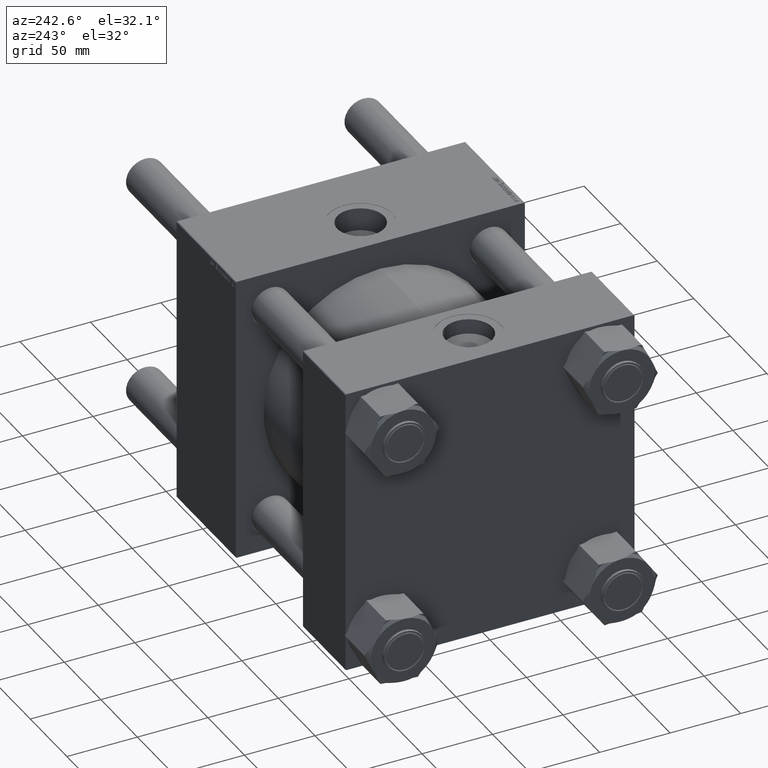
[diagram: clean part render]
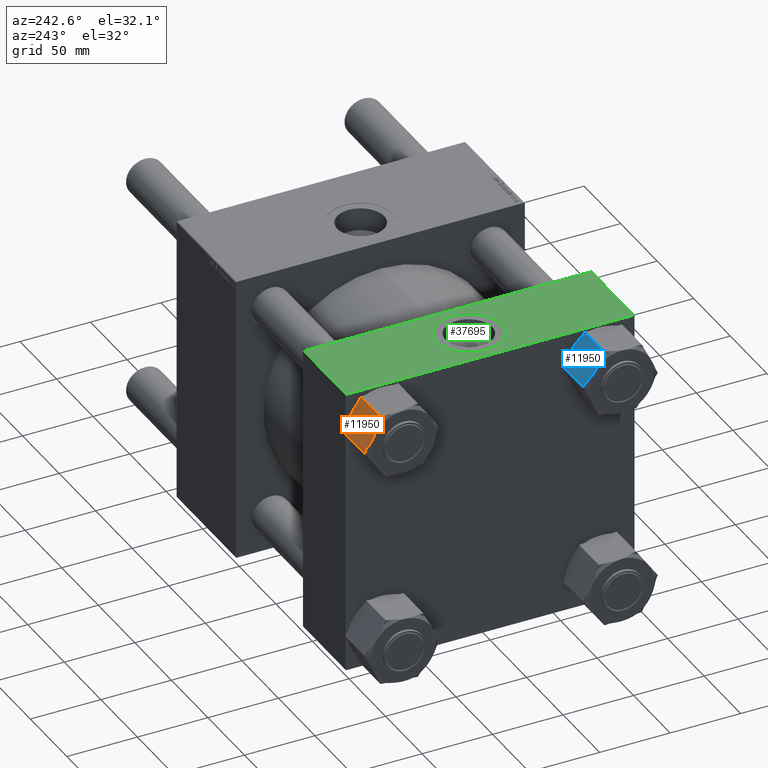
[diagram: same view with three faces highlighted in distinct colors, each labeled with its STEP entity id]
A machine part, auxiliary view with three faces highlighted in distinct colors.
Their STEP definitions:

[orange] entity #11950 — the highlighted planar face has unit normal (-0, -0.9058, -0.4237).
#653 = CARTESIAN_POINT ( 'NONE',  ( 24.47560625466583417, -3.714198918351720557, -1.691610128380188316 ) ) ;
#655 = CARTESIAN_POINT ( 'NONE',  ( 26.62000000000001165, -3.114209406997181913E-15, -2.000000000000001776 ) ) ;
#773 = VERTEX_POINT ( 'NONE', #15933 ) ;
#934 = CARTESIAN_POINT ( 'NONE',  ( 20.81146273741196140, -10.06068165645955936, 1.716653439768715775E-14 ) ) ;
#1368 = B_SPLINE_CURVE_WITH_KNOTS ( 'NONE', 3,
 ( #10497, #45799, #54762, #18904, #50425, #51008, #37713, #28451 ),
 .UNSPECIFIED., .F., .F.,
 ( 4, 2, 2, 4 ),
 ( 0.01001235240522100126, 0.01501505178013391902, 0.01751640146759038050, 0.02001775115504684371 ),
 .UNSPECIFIED. ) ;
#1503 = CARTESIAN_POINT ( 'NONE',  ( 24.86944657925254631, -3.032047466098111155, -2.000000000000000000 ) ) ;
#2219 = CARTESIAN_POINT ( 'NONE',  ( 21.02060996173663554, -9.698428037667220281, -30.90723860914735965 ) ) ;
#2905 = CARTESIAN_POINT ( 'NONE',  ( 24.86944657925254631, -3.032047466098111155, -2.000000000000000000 ) ) ;
#3565 = VECTOR ( 'NONE', #36167, 1000.000000000000000 ) ;
#4708 = CARTESIAN_POINT ( 'NONE',  ( 21.64175213325207991, -8.622578237878791185, -0.1878618656617445370 ) ) ;
#4942 = CARTESIAN_POINT ( 'NONE',  ( 16.64769565855988276, -17.27253778791399341, -0.8826024950750001041 ) ) ;
#5210 = EDGE_CURVE ( 'NONE', #21845, #29026, #48595, .T. ) ;
#5226 = B_SPLINE_CURVE_WITH_KNOTS ( 'NONE', 3,
 ( #44940, #934, #4708, #13958, #49557, #18026, #653, #1503 ),
 .UNSPECIFIED., .F., .F.,
 ( 4, 2, 2, 4 ),
 ( 0.01001235240522100993, 0.01501505178013392942, 0.01751640146759038744, 0.02001775115504684718 ),
 .UNSPECIFIED. ) ;
#5933 = DIRECTION ( 'NONE',  ( 0.5000000000000001110, 0.8660254037844385966, -0.000000000000000000 ) ) ;
#6224 = EDGE_CURVE ( 'NONE', #13896, #21845, #9231, .T. ) ;
#6901 = VECTOR ( 'NONE', #54458, 1000.000000000000000 ) ;
#7150 = CARTESIAN_POINT ( 'NONE',  ( 24.86944657925254987, -3.032047466098102273, -28.99999999999999645 ) ) ;
#7433 = CARTESIAN_POINT ( 'NONE',  ( 21.64584558940375558, -8.615488163845542502, -30.77092979404565298 ) ) ;
#8516 = EDGE_LOOP ( 'NONE', ( #50934, #17496, #15681, #34451, #52970, #34331, #39936, #44460, #13911, #48459 ) ) ;
#9231 = LINE ( 'NONE', #57008, #3565 ) ;
#10296 = CARTESIAN_POINT ( 'NONE',  ( 13.31000000000000938, -23.05359624874175850, -31.00000000000000000 ) ) ;
#10416 = CARTESIAN_POINT ( 'NONE',  ( 19.11895617587299867, -12.99218901318872810, -0.05818196640765635475 ) ) ;
#10497 = CARTESIAN_POINT ( 'NONE',  ( 19.96500000000001052, -11.52679812437088636, -31.00000000000000000 ) ) ;
#10946 = EDGE_CURVE ( 'NONE', #773, #16998, #41806, .T. ) ;
#11498 = CARTESIAN_POINT ( 'NONE',  ( 23.28230434144013827, -5.781058460827764200, -30.11739750492498757 ) ) ;
#11785 = CARTESIAN_POINT ( 'NONE',  ( 22.05804950302957579, -7.901530042366893269, -30.63660360727164900 ) ) ;
#11950 = ADVANCED_FACE ( 'NONE', ( #43688 ), #17334, .F. ) ;
#12036 = CARTESIAN_POINT ( 'NONE',  ( 26.62000000000001165, -3.114209406997181913E-15, -28.99999999999999645 ) ) ;
#12061 = CARTESIAN_POINT ( 'NONE',  ( 20.17675130770548009, -11.16003410085586367, -31.00000000000001776 ) ) ;
#13449 = CARTESIAN_POINT ( 'NONE',  ( 15.06055342074746584, -20.02154878264366644, -28.99999999999999645 ) ) ;
#13896 = VERTEX_POINT ( 'NONE', #13449 ) ;
#13911 = ORIENTED_EDGE ( 'NONE', *, *, #24512, .F. ) ;
#13958 = CARTESIAN_POINT ( 'NONE',  ( 22.86684697778495590, -6.500651723057162101, -0.7059057375046283722 ) ) ;
#14409 = VECTOR ( 'NONE', #5933, 1000.000000000000000 ) ;
#14494 = CARTESIAN_POINT ( 'NONE',  ( 26.62000000000001165, -3.114209406997181913E-15, -31.00000000000000000 ) ) ;
#15681 = ORIENTED_EDGE ( 'NONE', *, *, #30122, .F. ) ;
#15933 = CARTESIAN_POINT ( 'NONE',  ( 15.06055342074746939, -20.02154878264365934, -2.000000000000000000 ) ) ;
#16998 = VERTEX_POINT ( 'NONE', #19227 ) ;
#17037 = VERTEX_POINT ( 'NONE', #32548 ) ;
#17334 = PLANE ( 'NONE',  #54568 ) ;
#17347 = DIRECTION ( 'NONE',  ( -0.000000000000000000, -0.000000000000000000, 1.000000000000000000 ) ) ;
#17496 = ORIENTED_EDGE ( 'NONE', *, *, #24776, .T. ) ;
#17836 = VECTOR ( 'NONE', #32724, 1000.000000000000000 ) ;
#17951 = CARTESIAN_POINT ( 'NONE',  ( 19.96500000000001052, -11.52679812437088636, -31.00000000000000000 ) ) ;
#18026 = CARTESIAN_POINT ( 'NONE',  ( 24.07590164194817461, -4.406507615598338923, -1.410264737635125165 ) ) ;
#18257 = CARTESIAN_POINT ( 'NONE',  ( 19.96500000000001407, -11.52679812437088813, 0.000000000000000000 ) ) ;
#18830 = CARTESIAN_POINT ( 'NONE',  ( 18.28415441059626900, -14.43810808489622666, -0.2290702059543296421 ) ) ;
#18904 = CARTESIAN_POINT ( 'NONE',  ( 17.06315302221505448, -16.55294452568461239, -30.29409426249535997 ) ) ;
#19227 = CARTESIAN_POINT ( 'NONE',  ( 19.96500000000001407, -11.52679812437088813, 0.000000000000000000 ) ) ;
#19486 = VERTEX_POINT ( 'NONE', #2905 ) ;
#21845 = VERTEX_POINT ( 'NONE', #27548 ) ;
#22620 = CARTESIAN_POINT ( 'NONE',  ( 13.31000000000000938, -23.05359624874175850, -2.000000000000001776 ) ) ;
#23864 = B_SPLINE_CURVE_WITH_KNOTS ( 'NONE', 3,
 ( #7150, #55477, #11498, #11785, #7433, #2219, #50844, #46206, #12061, #55769 ),
 .UNSPECIFIED., .F., .F.,
 ( 4, 2, 2, 2, 4 ),
 ( 5.412492187524912870E-07, 0.005006446827219876265, 0.007509399616220438327, 0.008760876010720720225, 0.01001235240522100126 ),
 .UNSPECIFIED. ) ;
#24035 = LINE ( 'NONE', #14494, #17836 ) ;
#24512 = EDGE_CURVE ( 'NONE', #50545, #13896, #1368, .T. ) ;
#24776 = EDGE_CURVE ( 'NONE', #53512, #56596, #24035, .T. ) ;
#27526 = CARTESIAN_POINT ( 'NONE',  ( 19.75324869229454094, -11.89356214788591082, 1.751268852879841305E-14 ) ) ;
#27548 = CARTESIAN_POINT ( 'NONE',  ( 13.31000000000000938, -23.05359624874175850, -28.99999999999999645 ) ) ;
#27932 = LINE ( 'NONE', #45579, #14409 ) ;
#28451 = CARTESIAN_POINT ( 'NONE',  ( 15.06055342074746584, -20.02154878264366644, -28.99999999999999645 ) ) ;
#29026 = VERTEX_POINT ( 'NONE', #22620 ) ;
#30122 = EDGE_CURVE ( 'NONE', #19486, #56596, #44653, .T. ) ;
#31865 = CARTESIAN_POINT ( 'NONE',  ( 15.84797143746256154, -18.65770077089801049, -1.383425906575934228 ) ) ;
#32548 = CARTESIAN_POINT ( 'NONE',  ( 24.86944657925254987, -3.032047466098102273, -28.99999999999999645 ) ) ;
#32724 = DIRECTION ( 'NONE',  ( -0.000000000000000000, -0.000000000000000000, 1.000000000000000000 ) ) ;
#34331 = ORIENTED_EDGE ( 'NONE', *, *, #38985, .F. ) ;
#34451 = ORIENTED_EDGE ( 'NONE', *, *, #49481, .F. ) ;
#36167 = DIRECTION ( 'NONE',  ( -0.5000000000000001110, -0.8660254037844385966, 0.000000000000000000 ) ) ;
#36212 = CARTESIAN_POINT ( 'NONE',  ( 15.06055342074746939, -20.02154878264365934, -2.000000000000000000 ) ) ;
#37713 = CARTESIAN_POINT ( 'NONE',  ( 15.45439374533418153, -19.33939733039005304, -29.30838987161980924 ) ) ;
#38660 = VECTOR ( 'NONE', #57189, 1000.000000000000000 ) ;
#38782 = CARTESIAN_POINT ( 'NONE',  ( 26.62000000000001165, -3.114209406997181913E-15, -31.00000000000000000 ) ) ;
#38985 = EDGE_CURVE ( 'NONE', #29026, #773, #27932, .T. ) ;
#39556 = LINE ( 'NONE', #48218, #38660 ) ;
#39936 = ORIENTED_EDGE ( 'NONE', *, *, #5210, .F. ) ;
#39985 = EDGE_CURVE ( 'NONE', #17037, #50545, #23864, .T. ) ;
#40549 = CARTESIAN_POINT ( 'NONE',  ( 17.87195049697045235, -15.15206620637487056, -0.3633963927283481166 ) ) ;
#40709 = EDGE_CURVE ( 'NONE', #53512, #17037, #39556, .T. ) ;
#41806 = B_SPLINE_CURVE_WITH_KNOTS ( 'NONE', 3,
 ( #36212, #31865, #4942, #40549, #18830, #53839, #10416, #49501, #27526, #18257 ),
 .UNSPECIFIED., .F., .F.,
 ( 4, 2, 2, 2, 4 ),
 ( 5.412492187692172230E-07, 0.005006446827219892745, 0.007509399616220453939, 0.008760876010720730633, 0.01001235240522100993 ),
 .UNSPECIFIED. ) ;
#42705 = CARTESIAN_POINT ( 'NONE',  ( 26.62000000000001165, -3.114209406997181913E-15, -2.000000000000001776 ) ) ;
#43688 = FACE_OUTER_BOUND ( 'NONE', #8516, .T. ) ;
#44460 = ORIENTED_EDGE ( 'NONE', *, *, #6224, .F. ) ;
#44653 = LINE ( 'NONE', #655, #6901 ) ;
#44940 = CARTESIAN_POINT ( 'NONE',  ( 19.96500000000001407, -11.52679812437088813, 0.000000000000000000 ) ) ;
#45579 = CARTESIAN_POINT ( 'NONE',  ( 26.62000000000001165, -3.114209406997181913E-15, -2.000000000000001776 ) ) ;
#45799 = CARTESIAN_POINT ( 'NONE',  ( 19.11853726258805253, -12.99291459228221335, -31.00000000000001421 ) ) ;
#46206 = CARTESIAN_POINT ( 'NONE',  ( 20.38949137558736879, -10.79155749447877533, -30.98821302260233423 ) ) ;
#48218 = CARTESIAN_POINT ( 'NONE',  ( 26.62000000000001165, -3.114209406997181913E-15, -28.99999999999999645 ) ) ;
#48459 = ORIENTED_EDGE ( 'NONE', *, *, #39985, .F. ) ;
#48595 = LINE ( 'NONE', #10296, #56184 ) ;
#49481 = EDGE_CURVE ( 'NONE', #16998, #19486, #5226, .T. ) ;
#49501 = CARTESIAN_POINT ( 'NONE',  ( 19.54050862441265934, -12.26203875426299561, -0.01178697739765613428 ) ) ;
#49557 = CARTESIAN_POINT ( 'NONE',  ( 23.27184413332394541, -5.799176072742754151, -0.9177057102691517088 ) ) ;
#50425 = CARTESIAN_POINT ( 'NONE',  ( 16.65815586667606851, -17.25442017599902300, -30.08229428973084651 ) ) ;
#50545 = VERTEX_POINT ( 'NONE', #17951 ) ;
#50844 = CARTESIAN_POINT ( 'NONE',  ( 20.81104382412701881, -10.06140723555304106, -30.94181803359233740 ) ) ;
#50934 = ORIENTED_EDGE ( 'NONE', *, *, #40709, .F. ) ;
#51008 = CARTESIAN_POINT ( 'NONE',  ( 15.85409835805183221, -18.64708863314342935, -29.58973526236486151 ) ) ;
#52640 = DIRECTION ( 'NONE',  ( -0.8660254037844385966, 0.5000000000000001110, 0.000000000000000000 ) ) ;
#52970 = ORIENTED_EDGE ( 'NONE', *, *, #10946, .F. ) ;
#53512 = VERTEX_POINT ( 'NONE', #12036 ) ;
#53839 = CARTESIAN_POINT ( 'NONE',  ( 18.90939003826338904, -13.35516821107455065, -0.09276139085263494788 ) ) ;
#54458 = DIRECTION ( 'NONE',  ( 0.5000000000000001110, 0.8660254037844385966, -0.000000000000000000 ) ) ;
#54568 = AXIS2_PLACEMENT_3D ( 'NONE', #38782, #52640, #56414 ) ;
#54762 = CARTESIAN_POINT ( 'NONE',  ( 18.28824786674792335, -14.43101801086298508, -30.81213813433824100 ) ) ;
#55477 = CARTESIAN_POINT ( 'NONE',  ( 24.08202856253745594, -4.395895477843759558, -29.61657409342405600 ) ) ;
#55769 = CARTESIAN_POINT ( 'NONE',  ( 19.96500000000001052, -11.52679812437088636, -31.00000000000000000 ) ) ;
#56184 = VECTOR ( 'NONE', #17347, 1000.000000000000000 ) ;
#56414 = DIRECTION ( 'NONE',  ( -0.5000000000000001110, -0.8660254037844385966, 0.000000000000000000 ) ) ;
#56596 = VERTEX_POINT ( 'NONE', #42705 ) ;
#57008 = CARTESIAN_POINT ( 'NONE',  ( 26.62000000000001165, -3.114209406997181913E-15, -28.99999999999999645 ) ) ;
#57189 = DIRECTION ( 'NONE',  ( -0.5000000000000001110, -0.8660254037844385966, 0.000000000000000000 ) ) ;

[blue] entity #11950 — the highlighted planar face has unit normal (0, -0.8198, -0.5726).
#653 = CARTESIAN_POINT ( 'NONE',  ( 24.47560625466583417, -3.714198918351720557, -1.691610128380188316 ) ) ;
#655 = CARTESIAN_POINT ( 'NONE',  ( 26.62000000000001165, -3.114209406997181913E-15, -2.000000000000001776 ) ) ;
#773 = VERTEX_POINT ( 'NONE', #15933 ) ;
#934 = CARTESIAN_POINT ( 'NONE',  ( 20.81146273741196140, -10.06068165645955936, 1.716653439768715775E-14 ) ) ;
#1368 = B_SPLINE_CURVE_WITH_KNOTS ( 'NONE', 3,
 ( #10497, #45799, #54762, #18904, #50425, #51008, #37713, #28451 ),
 .UNSPECIFIED., .F., .F.,
 ( 4, 2, 2, 4 ),
 ( 0.01001235240522100126, 0.01501505178013391902, 0.01751640146759038050, 0.02001775115504684371 ),
 .UNSPECIFIED. ) ;
#1503 = CARTESIAN_POINT ( 'NONE',  ( 24.86944657925254631, -3.032047466098111155, -2.000000000000000000 ) ) ;
#2219 = CARTESIAN_POINT ( 'NONE',  ( 21.02060996173663554, -9.698428037667220281, -30.90723860914735965 ) ) ;
#2905 = CARTESIAN_POINT ( 'NONE',  ( 24.86944657925254631, -3.032047466098111155, -2.000000000000000000 ) ) ;
#3565 = VECTOR ( 'NONE', #36167, 1000.000000000000000 ) ;
#4708 = CARTESIAN_POINT ( 'NONE',  ( 21.64175213325207991, -8.622578237878791185, -0.1878618656617445370 ) ) ;
#4942 = CARTESIAN_POINT ( 'NONE',  ( 16.64769565855988276, -17.27253778791399341, -0.8826024950750001041 ) ) ;
#5210 = EDGE_CURVE ( 'NONE', #21845, #29026, #48595, .T. ) ;
#5226 = B_SPLINE_CURVE_WITH_KNOTS ( 'NONE', 3,
 ( #44940, #934, #4708, #13958, #49557, #18026, #653, #1503 ),
 .UNSPECIFIED., .F., .F.,
 ( 4, 2, 2, 4 ),
 ( 0.01001235240522100993, 0.01501505178013392942, 0.01751640146759038744, 0.02001775115504684718 ),
 .UNSPECIFIED. ) ;
#5933 = DIRECTION ( 'NONE',  ( 0.5000000000000001110, 0.8660254037844385966, -0.000000000000000000 ) ) ;
#6224 = EDGE_CURVE ( 'NONE', #13896, #21845, #9231, .T. ) ;
#6901 = VECTOR ( 'NONE', #54458, 1000.000000000000000 ) ;
#7150 = CARTESIAN_POINT ( 'NONE',  ( 24.86944657925254987, -3.032047466098102273, -28.99999999999999645 ) ) ;
#7433 = CARTESIAN_POINT ( 'NONE',  ( 21.64584558940375558, -8.615488163845542502, -30.77092979404565298 ) ) ;
#8516 = EDGE_LOOP ( 'NONE', ( #50934, #17496, #15681, #34451, #52970, #34331, #39936, #44460, #13911, #48459 ) ) ;
#9231 = LINE ( 'NONE', #57008, #3565 ) ;
#10296 = CARTESIAN_POINT ( 'NONE',  ( 13.31000000000000938, -23.05359624874175850, -31.00000000000000000 ) ) ;
#10416 = CARTESIAN_POINT ( 'NONE',  ( 19.11895617587299867, -12.99218901318872810, -0.05818196640765635475 ) ) ;
#10497 = CARTESIAN_POINT ( 'NONE',  ( 19.96500000000001052, -11.52679812437088636, -31.00000000000000000 ) ) ;
#10946 = EDGE_CURVE ( 'NONE', #773, #16998, #41806, .T. ) ;
#11498 = CARTESIAN_POINT ( 'NONE',  ( 23.28230434144013827, -5.781058460827764200, -30.11739750492498757 ) ) ;
#11785 = CARTESIAN_POINT ( 'NONE',  ( 22.05804950302957579, -7.901530042366893269, -30.63660360727164900 ) ) ;
#11950 = ADVANCED_FACE ( 'NONE', ( #43688 ), #17334, .F. ) ;
#12036 = CARTESIAN_POINT ( 'NONE',  ( 26.62000000000001165, -3.114209406997181913E-15, -28.99999999999999645 ) ) ;
#12061 = CARTESIAN_POINT ( 'NONE',  ( 20.17675130770548009, -11.16003410085586367, -31.00000000000001776 ) ) ;
#13449 = CARTESIAN_POINT ( 'NONE',  ( 15.06055342074746584, -20.02154878264366644, -28.99999999999999645 ) ) ;
#13896 = VERTEX_POINT ( 'NONE', #13449 ) ;
#13911 = ORIENTED_EDGE ( 'NONE', *, *, #24512, .F. ) ;
#13958 = CARTESIAN_POINT ( 'NONE',  ( 22.86684697778495590, -6.500651723057162101, -0.7059057375046283722 ) ) ;
#14409 = VECTOR ( 'NONE', #5933, 1000.000000000000000 ) ;
#14494 = CARTESIAN_POINT ( 'NONE',  ( 26.62000000000001165, -3.114209406997181913E-15, -31.00000000000000000 ) ) ;
#15681 = ORIENTED_EDGE ( 'NONE', *, *, #30122, .F. ) ;
#15933 = CARTESIAN_POINT ( 'NONE',  ( 15.06055342074746939, -20.02154878264365934, -2.000000000000000000 ) ) ;
#16998 = VERTEX_POINT ( 'NONE', #19227 ) ;
#17037 = VERTEX_POINT ( 'NONE', #32548 ) ;
#17334 = PLANE ( 'NONE',  #54568 ) ;
#17347 = DIRECTION ( 'NONE',  ( -0.000000000000000000, -0.000000000000000000, 1.000000000000000000 ) ) ;
#17496 = ORIENTED_EDGE ( 'NONE', *, *, #24776, .T. ) ;
#17836 = VECTOR ( 'NONE', #32724, 1000.000000000000000 ) ;
#17951 = CARTESIAN_POINT ( 'NONE',  ( 19.96500000000001052, -11.52679812437088636, -31.00000000000000000 ) ) ;
#18026 = CARTESIAN_POINT ( 'NONE',  ( 24.07590164194817461, -4.406507615598338923, -1.410264737635125165 ) ) ;
#18257 = CARTESIAN_POINT ( 'NONE',  ( 19.96500000000001407, -11.52679812437088813, 0.000000000000000000 ) ) ;
#18830 = CARTESIAN_POINT ( 'NONE',  ( 18.28415441059626900, -14.43810808489622666, -0.2290702059543296421 ) ) ;
#18904 = CARTESIAN_POINT ( 'NONE',  ( 17.06315302221505448, -16.55294452568461239, -30.29409426249535997 ) ) ;
#19227 = CARTESIAN_POINT ( 'NONE',  ( 19.96500000000001407, -11.52679812437088813, 0.000000000000000000 ) ) ;
#19486 = VERTEX_POINT ( 'NONE', #2905 ) ;
#21845 = VERTEX_POINT ( 'NONE', #27548 ) ;
#22620 = CARTESIAN_POINT ( 'NONE',  ( 13.31000000000000938, -23.05359624874175850, -2.000000000000001776 ) ) ;
#23864 = B_SPLINE_CURVE_WITH_KNOTS ( 'NONE', 3,
 ( #7150, #55477, #11498, #11785, #7433, #2219, #50844, #46206, #12061, #55769 ),
 .UNSPECIFIED., .F., .F.,
 ( 4, 2, 2, 2, 4 ),
 ( 5.412492187524912870E-07, 0.005006446827219876265, 0.007509399616220438327, 0.008760876010720720225, 0.01001235240522100126 ),
 .UNSPECIFIED. ) ;
#24035 = LINE ( 'NONE', #14494, #17836 ) ;
#24512 = EDGE_CURVE ( 'NONE', #50545, #13896, #1368, .T. ) ;
#24776 = EDGE_CURVE ( 'NONE', #53512, #56596, #24035, .T. ) ;
#27526 = CARTESIAN_POINT ( 'NONE',  ( 19.75324869229454094, -11.89356214788591082, 1.751268852879841305E-14 ) ) ;
#27548 = CARTESIAN_POINT ( 'NONE',  ( 13.31000000000000938, -23.05359624874175850, -28.99999999999999645 ) ) ;
#27932 = LINE ( 'NONE', #45579, #14409 ) ;
#28451 = CARTESIAN_POINT ( 'NONE',  ( 15.06055342074746584, -20.02154878264366644, -28.99999999999999645 ) ) ;
#29026 = VERTEX_POINT ( 'NONE', #22620 ) ;
#30122 = EDGE_CURVE ( 'NONE', #19486, #56596, #44653, .T. ) ;
#31865 = CARTESIAN_POINT ( 'NONE',  ( 15.84797143746256154, -18.65770077089801049, -1.383425906575934228 ) ) ;
#32548 = CARTESIAN_POINT ( 'NONE',  ( 24.86944657925254987, -3.032047466098102273, -28.99999999999999645 ) ) ;
#32724 = DIRECTION ( 'NONE',  ( -0.000000000000000000, -0.000000000000000000, 1.000000000000000000 ) ) ;
#34331 = ORIENTED_EDGE ( 'NONE', *, *, #38985, .F. ) ;
#34451 = ORIENTED_EDGE ( 'NONE', *, *, #49481, .F. ) ;
#36167 = DIRECTION ( 'NONE',  ( -0.5000000000000001110, -0.8660254037844385966, 0.000000000000000000 ) ) ;
#36212 = CARTESIAN_POINT ( 'NONE',  ( 15.06055342074746939, -20.02154878264365934, -2.000000000000000000 ) ) ;
#37713 = CARTESIAN_POINT ( 'NONE',  ( 15.45439374533418153, -19.33939733039005304, -29.30838987161980924 ) ) ;
#38660 = VECTOR ( 'NONE', #57189, 1000.000000000000000 ) ;
#38782 = CARTESIAN_POINT ( 'NONE',  ( 26.62000000000001165, -3.114209406997181913E-15, -31.00000000000000000 ) ) ;
#38985 = EDGE_CURVE ( 'NONE', #29026, #773, #27932, .T. ) ;
#39556 = LINE ( 'NONE', #48218, #38660 ) ;
#39936 = ORIENTED_EDGE ( 'NONE', *, *, #5210, .F. ) ;
#39985 = EDGE_CURVE ( 'NONE', #17037, #50545, #23864, .T. ) ;
#40549 = CARTESIAN_POINT ( 'NONE',  ( 17.87195049697045235, -15.15206620637487056, -0.3633963927283481166 ) ) ;
#40709 = EDGE_CURVE ( 'NONE', #53512, #17037, #39556, .T. ) ;
#41806 = B_SPLINE_CURVE_WITH_KNOTS ( 'NONE', 3,
 ( #36212, #31865, #4942, #40549, #18830, #53839, #10416, #49501, #27526, #18257 ),
 .UNSPECIFIED., .F., .F.,
 ( 4, 2, 2, 2, 4 ),
 ( 5.412492187692172230E-07, 0.005006446827219892745, 0.007509399616220453939, 0.008760876010720730633, 0.01001235240522100993 ),
 .UNSPECIFIED. ) ;
#42705 = CARTESIAN_POINT ( 'NONE',  ( 26.62000000000001165, -3.114209406997181913E-15, -2.000000000000001776 ) ) ;
#43688 = FACE_OUTER_BOUND ( 'NONE', #8516, .T. ) ;
#44460 = ORIENTED_EDGE ( 'NONE', *, *, #6224, .F. ) ;
#44653 = LINE ( 'NONE', #655, #6901 ) ;
#44940 = CARTESIAN_POINT ( 'NONE',  ( 19.96500000000001407, -11.52679812437088813, 0.000000000000000000 ) ) ;
#45579 = CARTESIAN_POINT ( 'NONE',  ( 26.62000000000001165, -3.114209406997181913E-15, -2.000000000000001776 ) ) ;
#45799 = CARTESIAN_POINT ( 'NONE',  ( 19.11853726258805253, -12.99291459228221335, -31.00000000000001421 ) ) ;
#46206 = CARTESIAN_POINT ( 'NONE',  ( 20.38949137558736879, -10.79155749447877533, -30.98821302260233423 ) ) ;
#48218 = CARTESIAN_POINT ( 'NONE',  ( 26.62000000000001165, -3.114209406997181913E-15, -28.99999999999999645 ) ) ;
#48459 = ORIENTED_EDGE ( 'NONE', *, *, #39985, .F. ) ;
#48595 = LINE ( 'NONE', #10296, #56184 ) ;
#49481 = EDGE_CURVE ( 'NONE', #16998, #19486, #5226, .T. ) ;
#49501 = CARTESIAN_POINT ( 'NONE',  ( 19.54050862441265934, -12.26203875426299561, -0.01178697739765613428 ) ) ;
#49557 = CARTESIAN_POINT ( 'NONE',  ( 23.27184413332394541, -5.799176072742754151, -0.9177057102691517088 ) ) ;
#50425 = CARTESIAN_POINT ( 'NONE',  ( 16.65815586667606851, -17.25442017599902300, -30.08229428973084651 ) ) ;
#50545 = VERTEX_POINT ( 'NONE', #17951 ) ;
#50844 = CARTESIAN_POINT ( 'NONE',  ( 20.81104382412701881, -10.06140723555304106, -30.94181803359233740 ) ) ;
#50934 = ORIENTED_EDGE ( 'NONE', *, *, #40709, .F. ) ;
#51008 = CARTESIAN_POINT ( 'NONE',  ( 15.85409835805183221, -18.64708863314342935, -29.58973526236486151 ) ) ;
#52640 = DIRECTION ( 'NONE',  ( -0.8660254037844385966, 0.5000000000000001110, 0.000000000000000000 ) ) ;
#52970 = ORIENTED_EDGE ( 'NONE', *, *, #10946, .F. ) ;
#53512 = VERTEX_POINT ( 'NONE', #12036 ) ;
#53839 = CARTESIAN_POINT ( 'NONE',  ( 18.90939003826338904, -13.35516821107455065, -0.09276139085263494788 ) ) ;
#54458 = DIRECTION ( 'NONE',  ( 0.5000000000000001110, 0.8660254037844385966, -0.000000000000000000 ) ) ;
#54568 = AXIS2_PLACEMENT_3D ( 'NONE', #38782, #52640, #56414 ) ;
#54762 = CARTESIAN_POINT ( 'NONE',  ( 18.28824786674792335, -14.43101801086298508, -30.81213813433824100 ) ) ;
#55477 = CARTESIAN_POINT ( 'NONE',  ( 24.08202856253745594, -4.395895477843759558, -29.61657409342405600 ) ) ;
#55769 = CARTESIAN_POINT ( 'NONE',  ( 19.96500000000001052, -11.52679812437088636, -31.00000000000000000 ) ) ;
#56184 = VECTOR ( 'NONE', #17347, 1000.000000000000000 ) ;
#56414 = DIRECTION ( 'NONE',  ( -0.5000000000000001110, -0.8660254037844385966, 0.000000000000000000 ) ) ;
#56596 = VERTEX_POINT ( 'NONE', #42705 ) ;
#57008 = CARTESIAN_POINT ( 'NONE',  ( 26.62000000000001165, -3.114209406997181913E-15, -28.99999999999999645 ) ) ;
#57189 = DIRECTION ( 'NONE',  ( -0.5000000000000001110, -0.8660254037844385966, 0.000000000000000000 ) ) ;

[green] entity #37695 — the highlighted planar face has unit normal (0, 0, -1).
#520 = CARTESIAN_POINT ( 'NONE',  ( 58.00000000000000000, -101.9999999999999147, 102.5000000000000000 ) ) ;
#3376 = LINE ( 'NONE', #24232, #52329 ) ;
#3858 = VERTEX_POINT ( 'NONE', #8026 ) ;
#4013 = CARTESIAN_POINT ( 'NONE',  ( 29.00000000000000000, -8.673617379884038628E-15, 102.5000000000000142 ) ) ;
#5051 = ORIENTED_EDGE ( 'NONE', *, *, #39981, .T. ) ;
#6079 = ORIENTED_EDGE ( 'NONE', *, *, #10774, .F. ) ;
#8026 = CARTESIAN_POINT ( 'NONE',  ( 0.000000000000000000, 102.0000000000000142, 102.5000000000000284 ) ) ;
#10774 = EDGE_CURVE ( 'NONE', #33376, #51628, #55048, .T. ) ;
#11001 = DIRECTION ( 'NONE',  ( 0.000000000000000000, 0.000000000000000000, 1.000000000000000000 ) ) ;
#11062 = CARTESIAN_POINT ( 'NONE',  ( 58.00000000000000000, 102.5000000000000284, 102.5000000000000284 ) ) ;
#11855 = DIRECTION ( 'NONE',  ( 1.000000000000000000, 0.000000000000000000, 0.000000000000000000 ) ) ;
#13323 = CIRCLE ( 'NONE', #43836, 22.50000000000000355 ) ;
#14480 = EDGE_LOOP ( 'NONE', ( #5051, #45550, #6079, #17397 ) ) ;
#17397 = ORIENTED_EDGE ( 'NONE', *, *, #30721, .T. ) ;
#19279 = ORIENTED_EDGE ( 'NONE', *, *, #55111, .F. ) ;
#19888 = VERTEX_POINT ( 'NONE', #45897 ) ;
#24016 = VECTOR ( 'NONE', #33670, 1000.000000000000000 ) ;
#24232 = CARTESIAN_POINT ( 'NONE',  ( 0.000000000000000000, 102.5000000000000284, 102.5000000000000284 ) ) ;
#24456 = LINE ( 'NONE', #55983, #38369 ) ;
#24753 = EDGE_CURVE ( 'NONE', #34555, #19888, #56639, .T. ) ;
#27777 = CARTESIAN_POINT ( 'NONE',  ( 58.00000000000000000, 102.5000000000000284, 102.5000000000000284 ) ) ;
#27807 = DIRECTION ( 'NONE',  ( 1.000000000000000000, 0.000000000000000000, 0.000000000000000000 ) ) ;
#28062 = PLANE ( 'NONE',  #37654 ) ;
#30721 = EDGE_CURVE ( 'NONE', #33376, #3858, #24456, .T. ) ;
#30961 = EDGE_CURVE ( 'NONE', #54729, #51628, #41461, .T. ) ;
#31290 = CARTESIAN_POINT ( 'NONE',  ( 51.50000000000000711, -8.673617379884038628E-15, 102.5000000000000142 ) ) ;
#31703 = AXIS2_PLACEMENT_3D ( 'NONE', #41989, #11001, #27807 ) ;
#32407 = FACE_BOUND ( 'NONE', #53666, .T. ) ;
#33376 = VERTEX_POINT ( 'NONE', #51911 ) ;
#33670 = DIRECTION ( 'NONE',  ( 0.000000000000000000, -1.000000000000000000, -1.353930517835556973E-16 ) ) ;
#33736 = CARTESIAN_POINT ( 'NONE',  ( 0.000000000000000000, -101.9999999999999147, 102.5000000000000000 ) ) ;
#34555 = VERTEX_POINT ( 'NONE', #31290 ) ;
#37112 = CARTESIAN_POINT ( 'NONE',  ( 58.00000000000000000, -101.9999999999999716, 102.5000000000000000 ) ) ;
#37318 = FACE_OUTER_BOUND ( 'NONE', #14480, .T. ) ;
#37654 = AXIS2_PLACEMENT_3D ( 'NONE', #27777, #54380, #45138 ) ;
#37695 = ADVANCED_FACE ( 'NONE', ( #32407, #37318 ), #28062, .F. ) ;
#37703 = DIRECTION ( 'NONE',  ( 1.000000000000000000, 0.000000000000000000, 0.000000000000000000 ) ) ;
#38369 = VECTOR ( 'NONE', #42116, 1000.000000000000000 ) ;
#39981 = EDGE_CURVE ( 'NONE', #3858, #54729, #3376, .T. ) ;
#41461 = LINE ( 'NONE', #37112, #42983 ) ;
#41989 = CARTESIAN_POINT ( 'NONE',  ( 29.00000000000000000, -8.673617379884038628E-15, 102.5000000000000142 ) ) ;
#42116 = DIRECTION ( 'NONE',  ( -1.000000000000000000, 0.000000000000000000, 0.000000000000000000 ) ) ;
#42983 = VECTOR ( 'NONE', #37703, 1000.000000000000000 ) ;
#43836 = AXIS2_PLACEMENT_3D ( 'NONE', #4013, #51512, #11855 ) ;
#45138 = DIRECTION ( 'NONE',  ( 0.000000000000000000, 1.000000000000000000, 1.353930517835556973E-16 ) ) ;
#45550 = ORIENTED_EDGE ( 'NONE', *, *, #30961, .T. ) ;
#45897 = CARTESIAN_POINT ( 'NONE',  ( 6.499999999999995559, -5.918162081802493061E-15, 102.5000000000000142 ) ) ;
#46505 = DIRECTION ( 'NONE',  ( 0.000000000000000000, -1.000000000000000000, -1.353930517835556973E-16 ) ) ;
#51512 = DIRECTION ( 'NONE',  ( 0.000000000000000000, 0.000000000000000000, 1.000000000000000000 ) ) ;
#51628 = VERTEX_POINT ( 'NONE', #520 ) ;
#51911 = CARTESIAN_POINT ( 'NONE',  ( 58.00000000000000000, 102.0000000000000142, 102.5000000000000284 ) ) ;
#52329 = VECTOR ( 'NONE', #46505, 1000.000000000000000 ) ;
#53089 = ORIENTED_EDGE ( 'NONE', *, *, #24753, .F. ) ;
#53666 = EDGE_LOOP ( 'NONE', ( #53089, #19279 ) ) ;
#54380 = DIRECTION ( 'NONE',  ( 0.000000000000000000, 1.353930517835556973E-16, -1.000000000000000000 ) ) ;
#54729 = VERTEX_POINT ( 'NONE', #33736 ) ;
#55048 = LINE ( 'NONE', #11062, #24016 ) ;
#55111 = EDGE_CURVE ( 'NONE', #19888, #34555, #13323, .T. ) ;
#55983 = CARTESIAN_POINT ( 'NONE',  ( 0.000000000000000000, 102.0000000000000142, 102.5000000000000284 ) ) ;
#56639 = CIRCLE ( 'NONE', #31703, 22.50000000000000355 ) ;